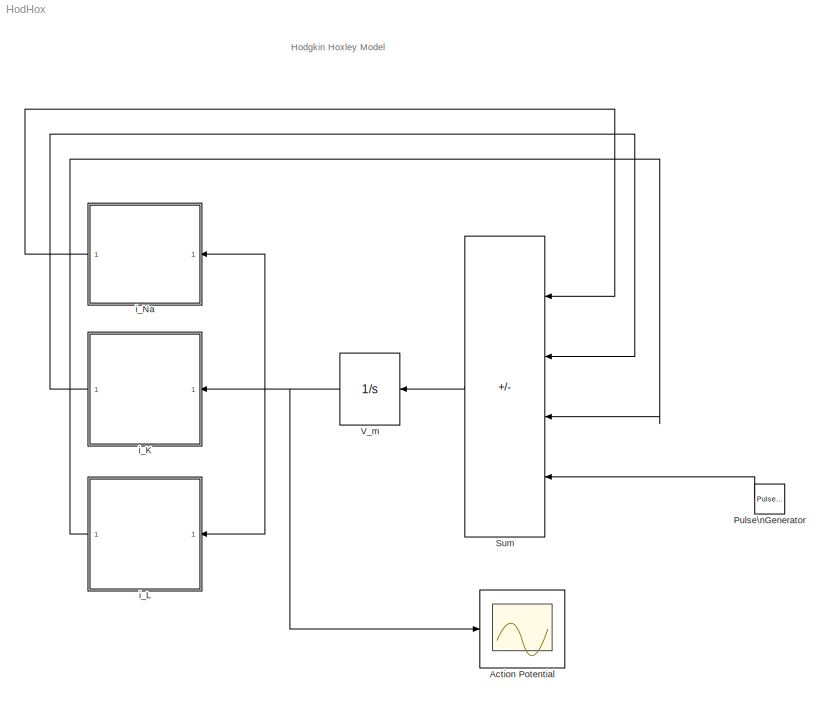
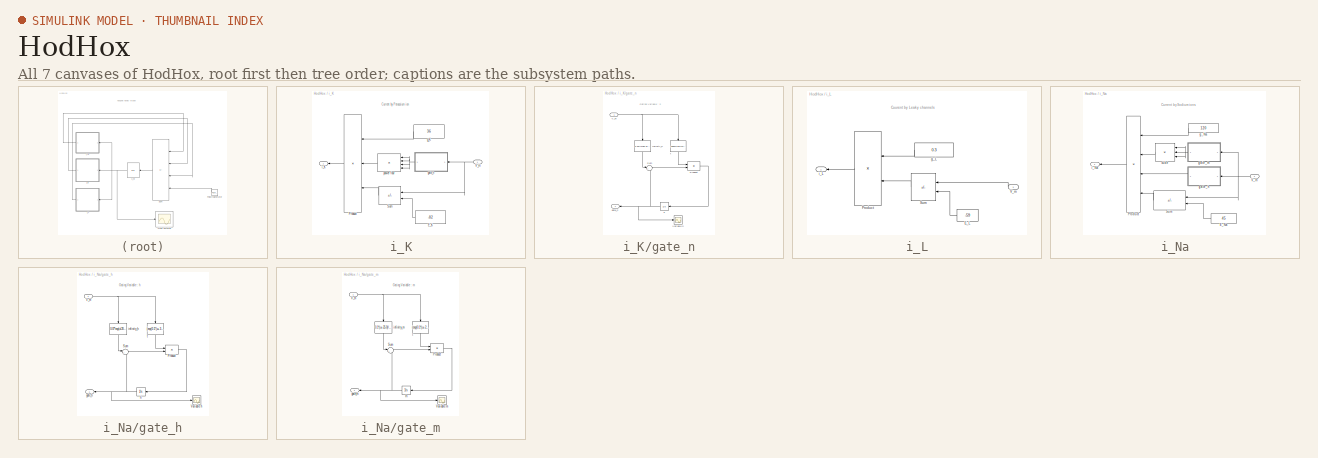
[diagram: thumbnail index - all 7 canvases of the model, root first then tree order]
MODEL HodHox
KIND model
CONFIG AbsTol = auto
CONFIG FixedStep = auto
CONFIG MaxStep = auto
CONFIG MinStep = auto
CONFIG RelTol = 1e-3
CONFIG Solver = ode45
CONFIG SolverMode = Auto
CONFIG StartTime = 0.0
CONFIG StopTime = 15.0
BLOCK [Scope] Action Potential
  DataFormat = StructureWithTime
  Decimation = 1
  Floating = off
  Grid = on
  LimitDataPoints = on
  MaxDataPoints = 5000
  NumInputPorts = 1
  Ports = [1]
  SampleInput = off
  SampleTime = 0
  SaveName = ScopeData
  SaveToWorkspace = off
  TickLabels = OneTimeTick
  TimeRange = 10
  YMax = 0
  YMin = -55
  ZoomMode = on
BLOCK [Reference] Pulse\nGenerator  REF=simulink3/Sources/Pulse\nGenerator
  Ports = [0, 1]
  SourceBlock = simulink3/Sources/Pulse\nGenerator
  SourceType = Pulse Generator
  VectorParams1D = on
  amplitude = 15
  duty = 50
  period = 2
  start = 5
BLOCK [Sum] Sum
  IconShape = rectangular
  Inputs = ---+
  Ports = [4, 1]
  SaturateOnIntegerOverflow = on
BLOCK [Integrator] V_m
  AbsoluteTolerance = auto
  ExternalReset = none
  InitialCondition = 0
  InitialConditionSource = internal
  LimitOutput = off
  LowerSaturationLimit = -inf
  Ports = [1, 1]
  ShowSaturationPort = off
  ShowStatePort = off
  UpperSaturationLimit = inf
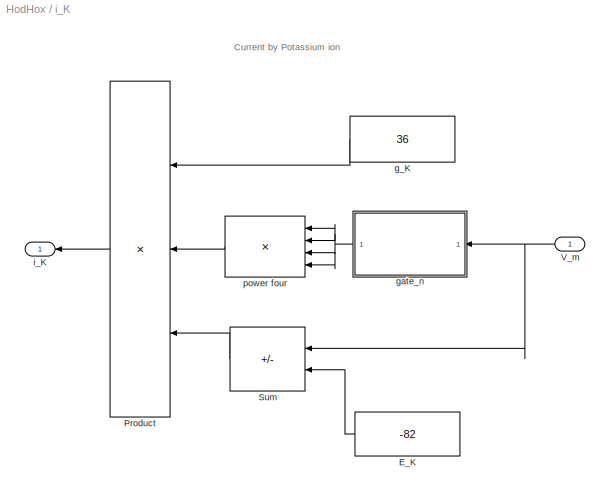
BLOCK [SubSystem] i_K
  Ports = [1, 1]
  RTWFcnNameOpts = Auto
  RTWFileNameOpts = Auto
  RTWSystemCode = Auto
  ShowPortLabels = on
  TreatAsAtomicUnit = off
BLOCK [Constant] i_K/E_K
  Value = -82
  VectorParams1D = on
BLOCK [Product] i_K/Product
  Inputs = 3
  Multiplication = Element-wise(.*)
  Ports = [3, 1]
  SaturateOnIntegerOverflow = on
BLOCK [Sum] i_K/Sum
  IconShape = rectangular
  Inputs = |+-
  Ports = [2, 1]
  SaturateOnIntegerOverflow = on
BLOCK [Inport] i_K/V_m
  Interpolate = on
  Port = 1
BLOCK [Constant] i_K/g_K
  Value = 36
  VectorParams1D = on
BLOCK [SubSystem] i_K/gate_n
  Ports = [1, 1]
  RTWFcnNameOpts = Auto
  RTWFileNameOpts = Auto
  RTWSystemCode = Auto
  ShowPortLabels = on
  TreatAsAtomicUnit = off
BLOCK [Product] i_K/gate_n/Product
  Inputs = /*
  Multiplication = Element-wise(.*)
  Ports = [2, 1]
  SaturateOnIntegerOverflow = on
BLOCK [Sum] i_K/gate_n/Sum
  IconShape = round
  Inputs = |+-
  Ports = [2, 1]
  SaturateOnIntegerOverflow = on
BLOCK [Inport] i_K/gate_n/V_m
  Interpolate = on
  Port = 1
BLOCK [Scope] i_K/gate_n/Variable n
  DataFormat = StructureWithTime
  Decimation = 1
  Floating = off
  Grid = on
  LimitDataPoints = on
  MaxDataPoints = 5000
  NumInputPorts = 1
  Ports = [1]
  SampleInput = off
  SampleTime = 0
  SaveName = ScopeData3
  SaveToWorkspace = off
  TickLabels = OneTimeTick
  TimeRange = auto
  YMax = 5
  YMin = -5
  ZoomMode = on
BLOCK [Outport] i_K/gate_n/gate_n
  InitialOutput = []
  OutputWhenDisabled = held
  Port = 1
BLOCK [Fcn] i_K/gate_n/infinity_n
  Expr = 0.01*(u+10.0)/(0.01*(u+10.0)+0.125*exp(u/80)*(exp(0.01*(u+10.0))-1.0))
BLOCK [Integrator] i_K/gate_n/n
  AbsoluteTolerance = auto
  ExternalReset = none
  InitialCondition = 0
  InitialConditionSource = internal
  LimitOutput = off
  LowerSaturationLimit = -inf
  Ports = [1, 1]
  ShowSaturationPort = off
  ShowStatePort = off
  UpperSaturationLimit = inf
BLOCK [Fcn] i_K/gate_n/t
  Expr = (exp(0.01*(u+10.0))-1.0)/(0.01*(u+10.0)+0.125*exp(u/80)*(exp(0.01*(u+10.0))-1.0))
BLOCK [Outport] i_K/i_K
  InitialOutput = []
  OutputWhenDisabled = held
  Port = 1
BLOCK [Product] i_K/power four
  Inputs = 4
  Multiplication = Element-wise(.*)
  Ports = [4, 1]
  SaturateOnIntegerOverflow = on
BLOCK [SubSystem] i_L
  Ports = [1, 1]
  RTWFcnNameOpts = Auto
  RTWFileNameOpts = Auto
  RTWSystemCode = Auto
  ShowPortLabels = on
  TreatAsAtomicUnit = off
BLOCK [Constant] i_L/E_L
  Value = -59
  VectorParams1D = on
BLOCK [Product] i_L/Product
  Inputs = 2
  Multiplication = Element-wise(.*)
  Ports = [2, 1]
  SaturateOnIntegerOverflow = on
BLOCK [Sum] i_L/Sum
  IconShape = rectangular
  Inputs = |+-
  Ports = [2, 1]
  SaturateOnIntegerOverflow = on
BLOCK [Inport] i_L/V_m
  Interpolate = on
  Port = 1
BLOCK [Constant] i_L/g_L
  Value = 0.3
  VectorParams1D = on
BLOCK [Outport] i_L/i_L
  InitialOutput = []
  OutputWhenDisabled = held
  Port = 1
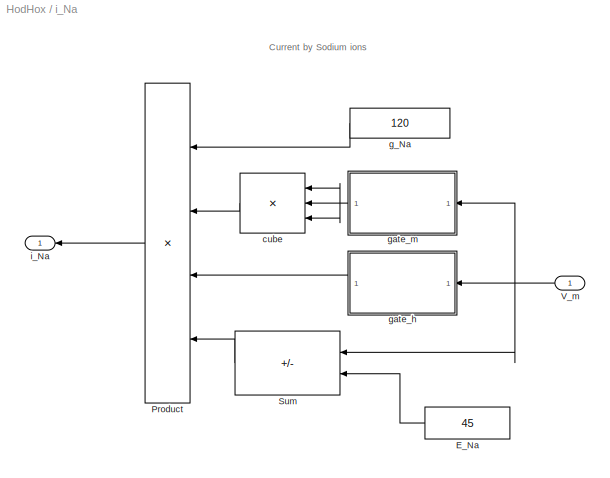
BLOCK [SubSystem] i_Na
  Ports = [1, 1]
  RTWFcnNameOpts = Auto
  RTWFileNameOpts = Auto
  RTWSystemCode = Auto
  ShowPortLabels = on
  TreatAsAtomicUnit = off
BLOCK [Constant] i_Na/E_Na
  Value = 45
  VectorParams1D = on
BLOCK [Product] i_Na/Product
  Inputs = 4
  Multiplication = Element-wise(.*)
  Ports = [4, 1]
  SaturateOnIntegerOverflow = on
BLOCK [Sum] i_Na/Sum
  IconShape = rectangular
  Inputs = |+-
  Ports = [2, 1]
  SaturateOnIntegerOverflow = on
BLOCK [Inport] i_Na/V_m
  Interpolate = on
  Port = 1
BLOCK [Product] i_Na/cube
  Inputs = 3
  Multiplication = Element-wise(.*)
  Ports = [3, 1]
  SaturateOnIntegerOverflow = on
BLOCK [Constant] i_Na/g_Na
  Value = 120
  VectorParams1D = on
BLOCK [SubSystem] i_Na/gate_h
  Ports = [1, 1]
  RTWFcnNameOpts = Auto
  RTWFileNameOpts = Auto
  RTWSystemCode = Auto
  ShowPortLabels = on
  TreatAsAtomicUnit = off
BLOCK [Product] i_Na/gate_h/Product
  Inputs = /*
  Multiplication = Element-wise(.*)
  Ports = [2, 1]
  SaturateOnIntegerOverflow = on
BLOCK [Sum] i_Na/gate_h/Sum
  IconShape = round
  Inputs = |+-
  Ports = [2, 1]
  SaturateOnIntegerOverflow = on
BLOCK [Inport] i_Na/gate_h/V_m
  Interpolate = on
  Port = 1
BLOCK [Scope] i_Na/gate_h/Variable h
  DataFormat = StructureWithTime
  Decimation = 1
  Floating = off
  Grid = on
  LimitDataPoints = on
  MaxDataPoints = 5000
  NumInputPorts = 1
  Ports = [1]
  SampleInput = off
  SampleTime = 0
  SaveName = ScopeData2
  SaveToWorkspace = off
  TickLabels = OneTimeTick
  TimeRange = auto
  YMax = 5
  YMin = -5
  ZoomMode = on
BLOCK [Outport] i_Na/gate_h/gate_h
  InitialOutput = []
  OutputWhenDisabled = held
  Port = 1
BLOCK [Integrator] i_Na/gate_h/h
  AbsoluteTolerance = auto
  ExternalReset = none
  InitialCondition = 0
  InitialConditionSource = internal
  LimitOutput = off
  LowerSaturationLimit = -inf
  Ports = [1, 1]
  ShowSaturationPort = off
  ShowStatePort = off
  UpperSaturationLimit = inf
BLOCK [Fcn] i_Na/gate_h/infinity_h
  Expr = 0.07*exp(u/20)*(exp(0.1*(u+30.0))+1.0)/(1.0+0.07*exp(u/20.0)*(exp(0.1*(u+30))+1.0))
BLOCK [Fcn] i_Na/gate_h/t
  Expr = (exp(0.1*(u+30.0))+1.0)/(1.0+0.07*exp(u/20.0)*(exp(0.1*(u+30.0))+1.0))
BLOCK [SubSystem] i_Na/gate_m
  Ports = [1, 1]
  RTWFcnNameOpts = Auto
  RTWFileNameOpts = Auto
  RTWSystemCode = Auto
  ShowPortLabels = on
  TreatAsAtomicUnit = off
BLOCK [Product] i_Na/gate_m/Product
  Inputs = /*
  Multiplication = Element-wise(.*)
  Ports = [2, 1]
  SaturateOnIntegerOverflow = on
BLOCK [Sum] i_Na/gate_m/Sum
  IconShape = round
  Inputs = |+-
  Ports = [2, 1]
  SaturateOnIntegerOverflow = on
BLOCK [Inport] i_Na/gate_m/V_m
  Interpolate = on
  Port = 1
BLOCK [Scope] i_Na/gate_m/Variable m
  DataFormat = StructureWithTime
  Decimation = 1
  Floating = off
  Grid = on
  LimitDataPoints = on
  MaxDataPoints = 5000
  NumInputPorts = 1
  Ports = [1]
  SampleInput = off
  SampleTime = 0
  SaveName = ScopeData1
  SaveToWorkspace = off
  TickLabels = OneTimeTick
  TimeRange = auto
  YMax = 5
  YMin = -5
  ZoomMode = on
BLOCK [Outport] i_Na/gate_m/gate_m
  InitialOutput = []
  OutputWhenDisabled = held
  Port = 1
BLOCK [Fcn] i_Na/gate_m/infinity_m
  Expr = 0.1*(u+25.0)/(0.1*(u+25.0)+4.0*(exp(u/18))*(exp(0.1*(u+25.0))-1.0))
BLOCK [Integrator] i_Na/gate_m/m
  AbsoluteTolerance = auto
  ExternalReset = none
  InitialCondition = 0
  InitialConditionSource = internal
  LimitOutput = off
  LowerSaturationLimit = -inf
  Ports = [1, 1]
  ShowSaturationPort = off
  ShowStatePort = off
  UpperSaturationLimit = inf
BLOCK [Fcn] i_Na/gate_m/t
  Expr = (exp(0.1*(u+25.0))-1.0)/(0.1*(u+25.0)+4.0*exp(u/18.0)*(exp(0.1*(u+25.0))-1.0))
BLOCK [Outport] i_Na/i_Na
  InitialOutput = []
  OutputWhenDisabled = held
  Port = 1
LINE Pulse\nGenerator:1 -> Sum:4
LINE Sum:1 -> V_m:1
NET V_m:1 -> Action Potential:1, i_K:1, i_L:1, i_Na:1
LINE i_K/E_K:1 -> i_K/Sum:2
LINE i_K/Product:1 -> i_K/i_K:1
LINE i_K/Sum:1 -> i_K/Product:3
NET i_K/V_m:1 -> i_K/Sum:1, i_K/gate_n:1
LINE i_K/g_K:1 -> i_K/Product:1
LINE i_K/gate_n/Product:1 -> i_K/gate_n/n:1
LINE i_K/gate_n/Sum:1 -> i_K/gate_n/Product:2
NET i_K/gate_n/V_m:1 -> i_K/gate_n/infinity_n:1, i_K/gate_n/t:1
LINE i_K/gate_n/infinity_n:1 -> i_K/gate_n/Sum:1
NET i_K/gate_n/n:1 -> i_K/gate_n/Sum:2, i_K/gate_n/Variable n:1, i_K/gate_n/gate_n:1
LINE i_K/gate_n/t:1 -> i_K/gate_n/Product:1
NET i_K/gate_n:1 -> i_K/power four:1, i_K/power four:2, i_K/power four:3, i_K/power four:4
LINE i_K/power four:1 -> i_K/Product:2
LINE i_K:1 -> Sum:2
LINE i_L/E_L:1 -> i_L/Sum:2
LINE i_L/Product:1 -> i_L/i_L:1
LINE i_L/Sum:1 -> i_L/Product:2
LINE i_L/V_m:1 -> i_L/Sum:1
LINE i_L/g_L:1 -> i_L/Product:1
LINE i_L:1 -> Sum:3
LINE i_Na/E_Na:1 -> i_Na/Sum:2
LINE i_Na/Product:1 -> i_Na/i_Na:1
LINE i_Na/Sum:1 -> i_Na/Product:4
NET i_Na/V_m:1 -> i_Na/Sum:1, i_Na/gate_h:1, i_Na/gate_m:1
LINE i_Na/cube:1 -> i_Na/Product:2
LINE i_Na/g_Na:1 -> i_Na/Product:1
LINE i_Na/gate_h/Product:1 -> i_Na/gate_h/h:1
LINE i_Na/gate_h/Sum:1 -> i_Na/gate_h/Product:2
NET i_Na/gate_h/V_m:1 -> i_Na/gate_h/infinity_h:1, i_Na/gate_h/t:1
NET i_Na/gate_h/h:1 -> i_Na/gate_h/Sum:2, i_Na/gate_h/Variable h:1, i_Na/gate_h/gate_h:1
LINE i_Na/gate_h/infinity_h:1 -> i_Na/gate_h/Sum:1
LINE i_Na/gate_h/t:1 -> i_Na/gate_h/Product:1
LINE i_Na/gate_h:1 -> i_Na/Product:3
LINE i_Na/gate_m/Product:1 -> i_Na/gate_m/m:1
LINE i_Na/gate_m/Sum:1 -> i_Na/gate_m/Product:2
NET i_Na/gate_m/V_m:1 -> i_Na/gate_m/infinity_m:1, i_Na/gate_m/t:1
LINE i_Na/gate_m/infinity_m:1 -> i_Na/gate_m/Sum:1
NET i_Na/gate_m/m:1 -> i_Na/gate_m/Sum:2, i_Na/gate_m/Variable m:1, i_Na/gate_m/gate_m:1
LINE i_Na/gate_m/t:1 -> i_Na/gate_m/Product:1
NET i_Na/gate_m:1 -> i_Na/cube:1, i_Na/cube:2, i_Na/cube:3
LINE i_Na:1 -> Sum:1
note: NET lines group one-source signal fan-out (src -> all destinations, sorted); 1:1 wires keep LINE
